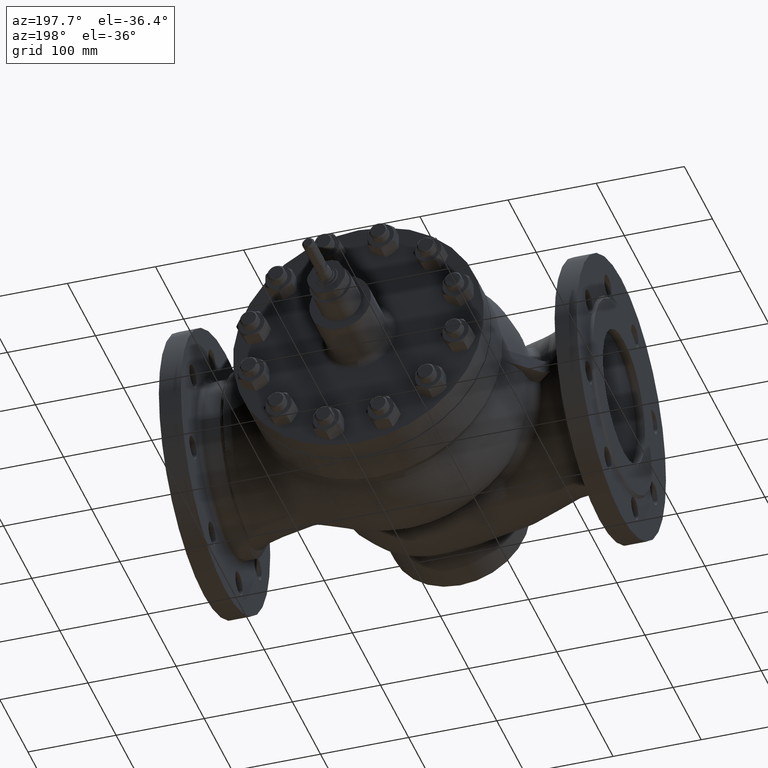
[diagram: clean part render]
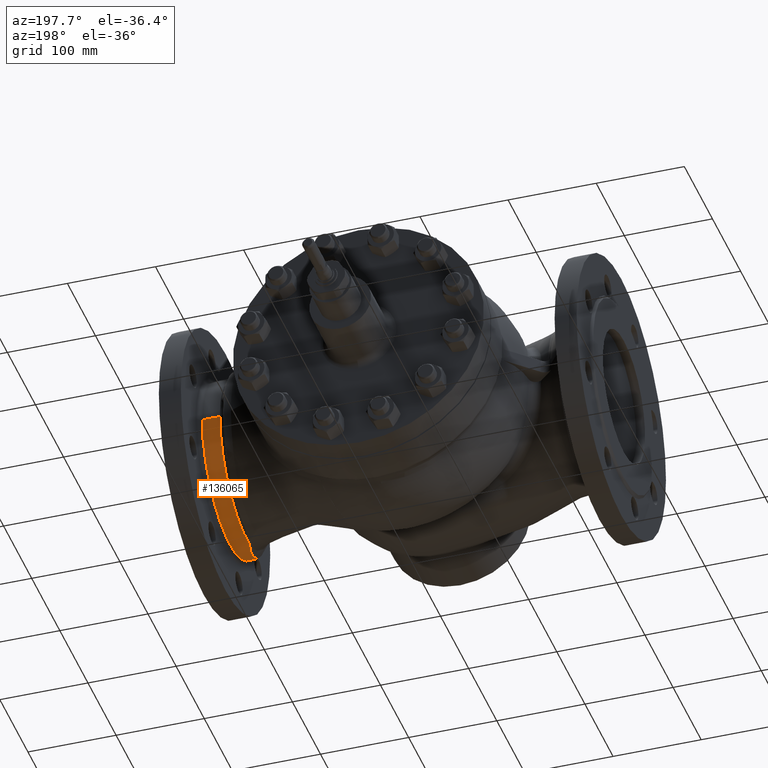
[diagram: same view with one face highlighted and labeled with its STEP entity id]
A machine part, auxiliary view. The second image highlights one B-rep face of the part: STEP entity #136065.
In plain terms, the highlighted cylindrical surface (partial cylindrical patch) has radius 98.5 mm, axis along (1, 0, -0).
Its self-contained STEP definition (entity closure, byte-faithful):
#1553 = ORIENTED_EDGE ( 'NONE', *, *, #107454, .T. ) ;
#8285 = DIRECTION ( 'NONE',  ( 0.0000000000000000000, 1.000000000000000000, 0.0000000000000000000 ) ) ;
#10301 = CARTESIAN_POINT ( 'NONE',  ( 196.1130152040407800, -90.58201133289867400, -38.70068141018904800 ) ) ;
#10973 = CARTESIAN_POINT ( 'NONE',  ( 195.2110784560248600, -68.12500800450490600, -71.20760470828818700 ) ) ;
#11640 = CARTESIAN_POINT ( 'NONE',  ( 192.1278335785443400, -31.97229853886267400, -93.21563527263010900 ) ) ;
#15616 = EDGE_CURVE ( 'NONE', #98102, #134986, #177430, .T. ) ;
#19265 = AXIS2_PLACEMENT_3D ( 'NONE', #195248, #163861, #8285 ) ;
#20253 = VERTEX_POINT ( 'NONE', #67883 ) ;
#21629 = CARTESIAN_POINT ( 'NONE',  ( 367.5123908998460300, -98.50000000000000000, 1.206277097160142900E-014 ) ) ;
#26004 = CARTESIAN_POINT ( 'NONE',  ( 196.0745805593826100, -89.33536520641436600, -41.51882476709285900 ) ) ;
#26679 = CARTESIAN_POINT ( 'NONE',  ( 194.8152576452590700, -61.23945539954201000, -77.20889853670361400 ) ) ;
#27340 = CARTESIAN_POINT ( 'NONE',  ( 190.7928995086347500, -23.30612330765641000, -95.75033982491535800 ) ) ;
#28527 = CARTESIAN_POINT ( 'NONE',  ( 187.3788615099962000, -8.499151725990413900, -98.13263687448235800 ) ) ;
#30588 = DIRECTION ( 'NONE',  ( 1.000000000000000000, 1.051538452005123800E-016, -0.0000000000000000000 ) ) ;
#41037 = CARTESIAN_POINT ( 'NONE',  ( 196.3300464917181800, -98.46441381139955200, -3.061829335135929600 ) ) ;
#41701 = CARTESIAN_POINT ( 'NONE',  ( 195.9868053629864700, -86.61463944366924700, -47.00551640128979600 ) ) ;
#42372 = CARTESIAN_POINT ( 'NONE',  ( 194.3175508146049700, -53.84015146653639100, -82.53983027135007000 ) ) ;
#42876 = CARTESIAN_POINT ( 'NONE',  ( 186.9999999999999100, -1.898157200945679400E-014, 0.0000000000000000000 ) ) ;
#43044 = CARTESIAN_POINT ( 'NONE',  ( 189.3016872953375900, -15.92104531957819600, -97.21646537895239200 ) ) ;
#44629 = CARTESIAN_POINT ( 'NONE',  ( 206.9999999999999100, -98.50000000000001400, 1.206277097160142900E-014 ) ) ;
#48267 = AXIS2_PLACEMENT_3D ( 'NONE', #124052, #30588, #139721 ) ;
#49850 = AXIS2_PLACEMENT_3D ( 'NONE', #42876, #152013, #58583 ) ;
#51278 = CARTESIAN_POINT ( 'NONE',  ( 187.3788615099962000, -8.499151725990413900, -98.13263687448235800 ) ) ;
#56747 = CARTESIAN_POINT ( 'NONE',  ( 196.3236733901354100, -98.21240311903707700, -7.677005166976718100 ) ) ;
#57417 = CARTESIAN_POINT ( 'NONE',  ( 195.8204651593662500, -81.89186803701581100, -54.81996503643947700 ) ) ;
#58087 = CARTESIAN_POINT ( 'NONE',  ( 193.8983604418433200, -48.59928897479324700, -85.68967647653552400 ) ) ;
#58583 = DIRECTION ( 'NONE',  ( 0.0000000000000000000, 1.000000000000000000, 0.0000000000000000000 ) ) ;
#58750 = CARTESIAN_POINT ( 'NONE',  ( 188.2139064946466600, -11.45801985291857500, -97.84277774140093700 ) ) ;
#61664 = LINE ( 'NONE', #162718, #98227 ) ;
#67883 = CARTESIAN_POINT ( 'NONE',  ( 186.9999999999999100, 98.49999999999997200, 0.0000000000000000000 ) ) ;
#72410 = CARTESIAN_POINT ( 'NONE',  ( 196.3020783220393900, -97.35299756970724200, -15.29460323323275100 ) ) ;
#73077 = CARTESIAN_POINT ( 'NONE',  ( 195.6410815492704100, -77.38413198384242300, -60.96124453243363200 ) ) ;
#73749 = CARTESIAN_POINT ( 'NONE',  ( 193.6598963524246200, -45.89689386831861400, -87.15683384059138900 ) ) ;
#74412 = CARTESIAN_POINT ( 'NONE',  ( 187.3788615099962000, -8.499151725990413900, -98.13263687448235800 ) ) ;
#79835 = EDGE_CURVE ( 'NONE', #134986, #93870, #190003, .T. ) ;
#84381 = DIRECTION ( 'NONE',  ( 1.000000000000000000, 1.051538452005123800E-016, -0.0000000000000000000 ) ) ;
#86706 = EDGE_CURVE ( 'NONE', #108246, #20253, #197022, .T. ) ;
#87398 = CARTESIAN_POINT ( 'NONE',  ( 196.3308723447675800, -98.50000000000005700, -1.529117650792289200 ) ) ;
#88074 = CARTESIAN_POINT ( 'NONE',  ( 196.2134269667208500, -93.97937834281825100, -30.13052214532374200 ) ) ;
#88735 = CARTESIAN_POINT ( 'NONE',  ( 195.5149475689038100, -74.45819520829810800, -64.50252847132992400 ) ) ;
#89411 = CARTESIAN_POINT ( 'NONE',  ( 193.4687068171432700, -43.84953465789514800, -88.20460388031267500 ) ) ;
#90601 = CARTESIAN_POINT ( 'NONE',  ( 187.1322579734313600, -7.680924931700986700, -98.20091484666609500 ) ) ;
#93870 = VERTEX_POINT ( 'NONE', #165978 ) ;
#98102 = VERTEX_POINT ( 'NONE', #100702 ) ;
#98227 = VECTOR ( 'NONE', #161354, 1000.000000000000000 ) ;
#100702 = CARTESIAN_POINT ( 'NONE',  ( 196.3308777922532900, -98.50000000000002800, -2.076675970739288500E-014 ) ) ;
#103774 = CARTESIAN_POINT ( 'NONE',  ( 196.1309147627773100, -91.17627469746028600, -37.27908865596897000 ) ) ;
#104446 = CARTESIAN_POINT ( 'NONE',  ( 195.3215004343698000, -70.30531111798080700, -69.05737933264136100 ) ) ;
#105115 = CARTESIAN_POINT ( 'NONE',  ( 192.8297978352558500, -37.62655116112999600, -91.08032268748854700 ) ) ;
#107454 = EDGE_CURVE ( 'NONE', #20253, #93870, #61664, .T. ) ;
#108246 = VERTEX_POINT ( 'NONE', #200107 ) ;
#119481 = CARTESIAN_POINT ( 'NONE',  ( 196.1036712786689700, -90.27581868674174400, -39.40963247848850400 ) ) ;
#119807 = EDGE_LOOP ( 'NONE', ( #121726, #159107, #181974, #133497, #1553, #176456 ) ) ;
#120147 = CARTESIAN_POINT ( 'NONE',  ( 194.9571279919424900, -63.59211954977599400, -75.28334487170907600 ) ) ;
#120822 = CARTESIAN_POINT ( 'NONE',  ( 191.7290099497483900, -29.10686132597401300, -94.14931536643786100 ) ) ;
#121726 = ORIENTED_EDGE ( 'NONE', *, *, #15616, .F. ) ;
#121998 = CARTESIAN_POINT ( 'NONE',  ( 187.2582610825246300, -8.089311785445634200, -98.16813262746323700 ) ) ;
#124052 = CARTESIAN_POINT ( 'NONE',  ( 206.9999999999999100, -1.687849510544655100E-014, 0.0000000000000000000 ) ) ;
#130637 = B_SPLINE_CURVE_WITH_KNOTS ( 'NONE', 3,
 ( #196601, #87398, #41037, #150182, #56747, #165882, #72410, #181580, #88074, #197265, #103774, #10301, #119481, #26004, #135157, #41701, #150849, #57417, #166551, #73077, #182269, #88735, #197933, #104446, #10973, #120147, #26679, #135827, #42372, #151512, #58087, #167228, #73749, #182924, #89411, #198599, #105115, #11640, #120822, #27340, #136483, #43044, #152181, #58750, #167902, #74412 ),
 .UNSPECIFIED., .F., .F.,
 ( 4, 2, 2, 2, 2, 2, 2, 2, 2, 2, 2, 2, 2, 2, 2, 2, 2, 2, 2, 2, 2, 2, 4 ),
 ( 0.1477574292870821900, 0.1523342566119344500, 0.1569110839367867100, 0.1660647385864912300, 0.1843720478859002800, 0.1866604615483264400, 0.1889488752107525700, 0.1935257025356048600, 0.2026793571853094400, 0.2118330118350140700, 0.2164098391598663400, 0.2209866664847186500, 0.2301403211344232000, 0.2392939757841277800, 0.2484476304338323300, 0.2530244577586846500, 0.2553128714211108100, 0.2576012850835369700, 0.2667549397332414900, 0.2759085943829460700, 0.2850622490326506500, 0.2896390763575029700, 0.2942159036823552300 ),
 .UNSPECIFIED. ) ;
#133497 = ORIENTED_EDGE ( 'NONE', *, *, #86706, .T. ) ;
#134986 = VERTEX_POINT ( 'NONE', #44629 ) ;
#135157 = CARTESIAN_POINT ( 'NONE',  ( 196.0537461640865600, -88.67774685268162200, -42.90510806021705300 ) ) ;
#135827 = CARTESIAN_POINT ( 'NONE',  ( 194.4959104885742800, -56.36345441452834100, -80.83715678662179000 ) ) ;
#135892 = VECTOR ( 'NONE', #84381, 1000.000000000000000 ) ;
#136065 = ADVANCED_FACE ( 'NONE', ( #170739 ), #165848, .T. ) ;
#136483 = CARTESIAN_POINT ( 'NONE',  ( 190.2564893135102300, -20.37069235025240800, -96.41767572676613400 ) ) ;
#139721 = DIRECTION ( 'NONE',  ( 0.0000000000000000000, 1.000000000000000000, 0.0000000000000000000 ) ) ;
#147537 = EDGE_CURVE ( 'NONE', #108246, #152041, #154536, .T. ) ;
#150182 = CARTESIAN_POINT ( 'NONE',  ( 196.3264525938902000, -98.32081498749830900, -6.134568142433468400 ) ) ;
#150849 = CARTESIAN_POINT ( 'NONE',  ( 195.9365411718144700, -85.11908723568777200, -49.66132907355417100 ) ) ;
#151512 = CARTESIAN_POINT ( 'NONE',  ( 194.0083468758336900, -49.92571571346026400, -84.92353491988812700 ) ) ;
#152013 = DIRECTION ( 'NONE',  ( 1.000000000000000000, 1.051538452005123800E-016, -0.0000000000000000000 ) ) ;
#152041 = VERTEX_POINT ( 'NONE', #51278 ) ;
#152181 = CARTESIAN_POINT ( 'NONE',  ( 188.9576367304449900, -14.42894768716080200, -97.44896532926473800 ) ) ;
#154536 = B_SPLINE_CURVE_WITH_KNOTS ( 'NONE', 3,
 ( #180095, #90601, #121998, #28527 ),
 .UNSPECIFIED., .F., .F.,
 ( 4, 4 ),
 ( 0.0000000000000000000, 0.001285916294901388500 ),
 .UNSPECIFIED. ) ;
#159107 = ORIENTED_EDGE ( 'NONE', *, *, #192246, .T. ) ;
#161354 = DIRECTION ( 'NONE',  ( 1.000000000000000000, 1.051538452005123800E-016, -0.0000000000000000000 ) ) ;
#162718 = CARTESIAN_POINT ( 'NONE',  ( 367.5123908998460300, 98.50000000000000000, 0.0000000000000000000 ) ) ;
#163861 = DIRECTION ( 'NONE',  ( 1.000000000000000000, 1.051538452005123800E-016, -0.0000000000000000000 ) ) ;
#165848 = CYLINDRICAL_SURFACE ( 'NONE', #19265, 98.50000000000000000 ) ;
#165882 = CARTESIAN_POINT ( 'NONE',  ( 196.3126886467661100, -97.78137282026504800, -12.26797735506806200 ) ) ;
#165978 = CARTESIAN_POINT ( 'NONE',  ( 206.9999999999999100, 98.49999999999998600, 0.0000000000000000000 ) ) ;
#166551 = CARTESIAN_POINT ( 'NONE',  ( 195.7544353791075500, -80.16019930762570300, -57.32278184374305900 ) ) ;
#167228 = CARTESIAN_POINT ( 'NONE',  ( 193.7210708945483800, -46.57672760608256400, -86.79544245745847800 ) ) ;
#167902 = CARTESIAN_POINT ( 'NONE',  ( 187.8134563045009900, -9.976047857158372200, -98.00472464566304600 ) ) ;
#170739 = FACE_OUTER_BOUND ( 'NONE', #119807, .T. ) ;
#176456 = ORIENTED_EDGE ( 'NONE', *, *, #79835, .F. ) ;
#177430 = LINE ( 'NONE', #21629, #135892 ) ;
#180095 = CARTESIAN_POINT ( 'NONE',  ( 186.9999999999999100, -7.274258441872683900, -98.23102953812936300 ) ) ;
#181580 = CARTESIAN_POINT ( 'NONE',  ( 196.2583262362804800, -95.65611487614054900, -24.27512682315654000 ) ) ;
#181974 = ORIENTED_EDGE ( 'NONE', *, *, #147537, .F. ) ;
#182269 = CARTESIAN_POINT ( 'NONE',  ( 195.6009136575425200, -76.42896814255262000, -62.15474110264175100 ) ) ;
#182924 = CARTESIAN_POINT ( 'NONE',  ( 193.5337537708988700, -44.53375896840611100, -87.86115674187354300 ) ) ;
#190003 = CIRCLE ( 'NONE', #48267, 98.50000000000000000 ) ;
#192246 = EDGE_CURVE ( 'NONE', #98102, #152041, #130637, .T. ) ;
#195248 = CARTESIAN_POINT ( 'NONE',  ( 367.5123908998460300, 0.0000000000000000000, 0.0000000000000000000 ) ) ;
#196601 = CARTESIAN_POINT ( 'NONE',  ( 196.3308777922532900, -98.50000000000002800, -2.076675970739288500E-014 ) ) ;
#197022 = CIRCLE ( 'NONE', #49850, 98.49999999999998600 ) ;
#197265 = CARTESIAN_POINT ( 'NONE',  ( 196.1394806718922700, -91.46450934980559600, -36.56614464740766800 ) ) ;
#197933 = CARTESIAN_POINT ( 'NONE',  ( 195.4690797896191200, -73.44167848763470400, -65.65780200281605500 ) ) ;
#198599 = CARTESIAN_POINT ( 'NONE',  ( 193.1327083089336400, -40.41541281166316000, -89.87872814861120200 ) ) ;
#200107 = CARTESIAN_POINT ( 'NONE',  ( 186.9999999999999100, -7.274258441872683900, -98.23102953812936300 ) ) ;